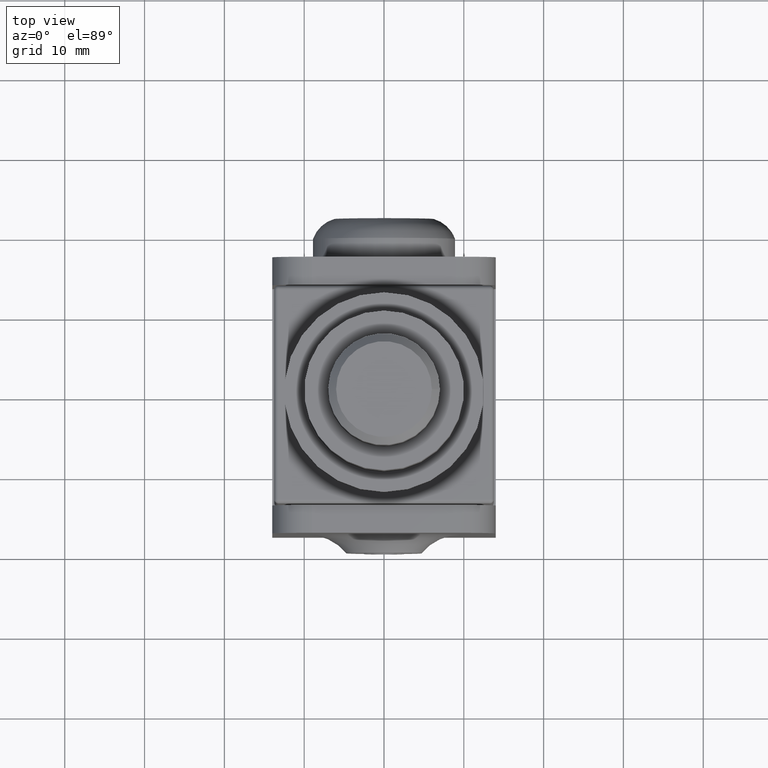
[diagram: clean part render]
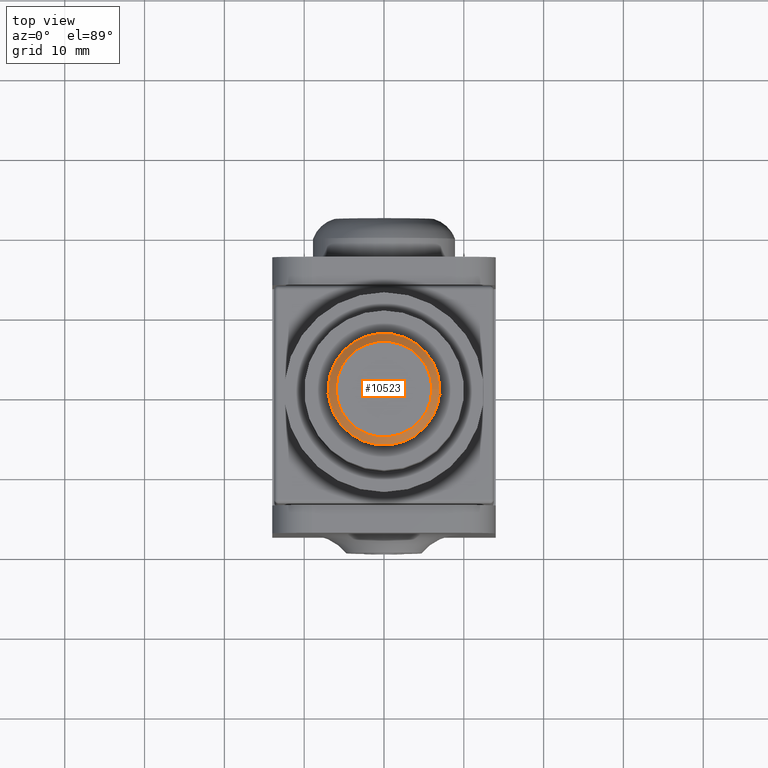
[diagram: same view with one face highlighted and labeled with its STEP entity id]
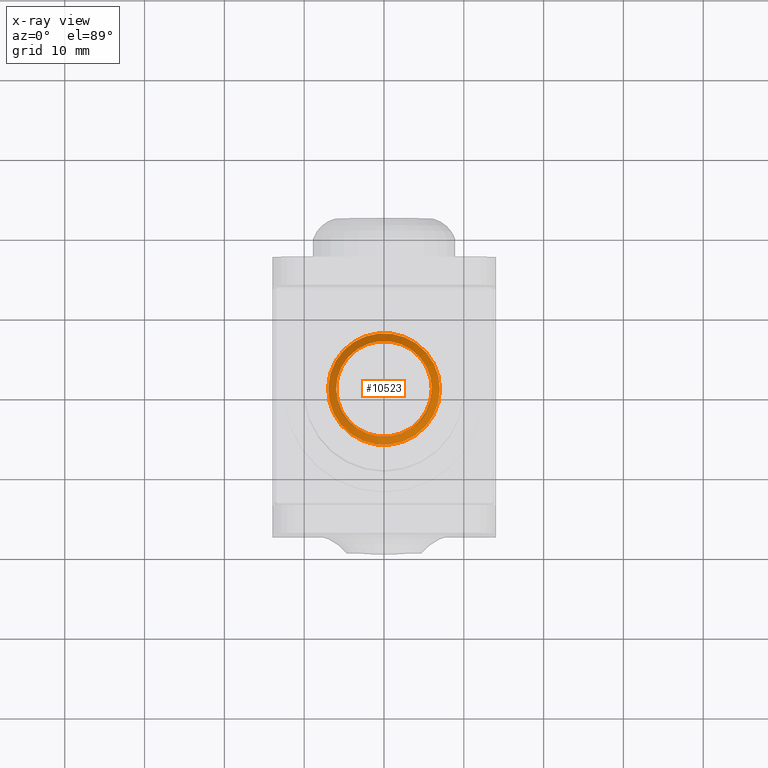
[diagram: x-ray of the same camera — body ghosted, the highlighted face saturated]
A machine part, top view. The second image highlights one B-rep face of the part: STEP entity #10523.
The next image is the same camera in x-ray: the body ghosted, the highlighted face saturated — about 0% of this face is hidden behind the body in this view.
In plain terms, the highlighted conical surface has half-angle 45 deg.
Its self-contained STEP definition (entity closure, byte-faithful):
#73 = DIRECTION ( 'NONE',  ( 1.000000000000000000, 0.000000000000000000, 0.000000000000000000 ) ) ;
#1057 = VERTEX_POINT ( 'NONE', #1494 ) ;
#1494 = CARTESIAN_POINT ( 'NONE',  ( 5.999999999999998224, 0.000000000000000000, 52.60000000000000142 ) ) ;
#2085 = CONICAL_SURFACE ( 'NONE', #4027, 5.999999999999998224, 0.7853981633974452814 ) ;
#4027 = AXIS2_PLACEMENT_3D ( 'NONE', #4213, #6484, #6536 ) ;
#4213 = CARTESIAN_POINT ( 'NONE',  ( 0.000000000000000000, 0.000000000000000000, 52.60000000000000142 ) ) ;
#4797 = FACE_BOUND ( 'NONE', #11596, .T. ) ;
#5228 = EDGE_LOOP ( 'NONE', ( #7337 ) ) ;
#5684 = EDGE_CURVE ( 'NONE', #11734, #11734, #14755, .T. ) ;
#6068 = CIRCLE ( 'NONE', #12418, 5.999999999999998224 ) ;
#6484 = DIRECTION ( 'NONE',  ( 0.000000000000000000, 0.000000000000000000, -1.000000000000000000 ) ) ;
#6536 = DIRECTION ( 'NONE',  ( -1.000000000000000000, 0.000000000000000000, 0.000000000000000000 ) ) ;
#7025 = DIRECTION ( 'NONE',  ( 0.000000000000000000, 0.000000000000000000, 1.000000000000000000 ) ) ;
#7309 = AXIS2_PLACEMENT_3D ( 'NONE', #8584, #12021, #10816 ) ;
#7337 = ORIENTED_EDGE ( 'NONE', *, *, #5684, .F. ) ;
#8584 = CARTESIAN_POINT ( 'NONE',  ( 0.000000000000000000, 0.000000000000000000, 51.59999999999999432 ) ) ;
#10301 = ORIENTED_EDGE ( 'NONE', *, *, #10647, .F. ) ;
#10523 = ADVANCED_FACE ( 'NONE', ( #13124, #4797 ), #2085, .T. ) ;
#10647 = EDGE_CURVE ( 'NONE', #1057, #1057, #6068, .T. ) ;
#10816 = DIRECTION ( 'NONE',  ( 1.000000000000000000, 0.000000000000000000, 0.000000000000000000 ) ) ;
#10903 = CARTESIAN_POINT ( 'NONE',  ( 7.000000000000000000, 0.000000000000000000, 51.59999999999999432 ) ) ;
#11596 = EDGE_LOOP ( 'NONE', ( #10301 ) ) ;
#11734 = VERTEX_POINT ( 'NONE', #10903 ) ;
#12021 = DIRECTION ( 'NONE',  ( 0.000000000000000000, 0.000000000000000000, -1.000000000000000000 ) ) ;
#12418 = AXIS2_PLACEMENT_3D ( 'NONE', #13946, #7025, #73 ) ;
#13124 = FACE_OUTER_BOUND ( 'NONE', #5228, .T. ) ;
#13946 = CARTESIAN_POINT ( 'NONE',  ( 0.000000000000000000, 0.000000000000000000, 52.60000000000000142 ) ) ;
#14755 = CIRCLE ( 'NONE', #7309, 7.000000000000000000 ) ;